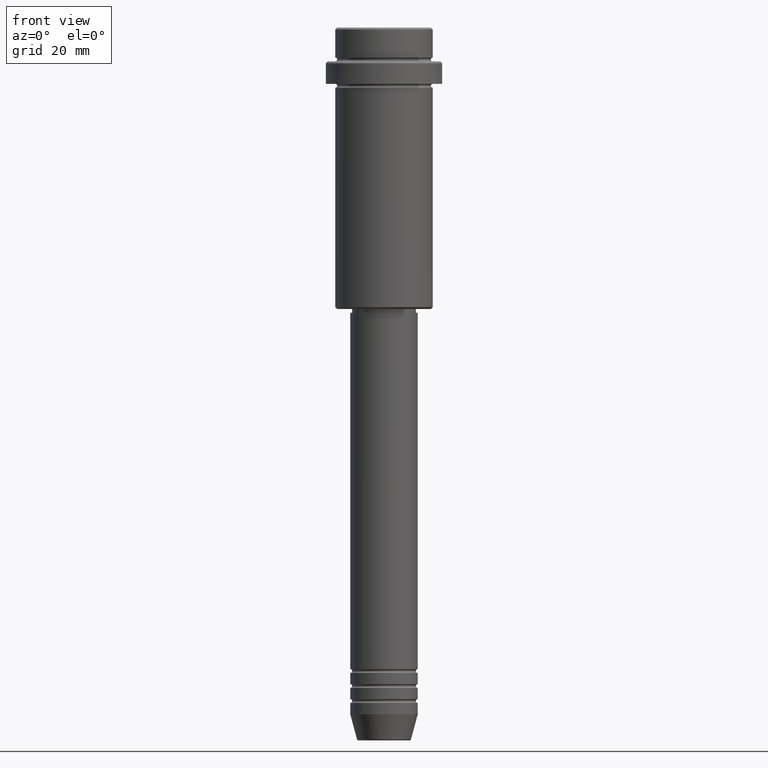
[diagram: clean part render]
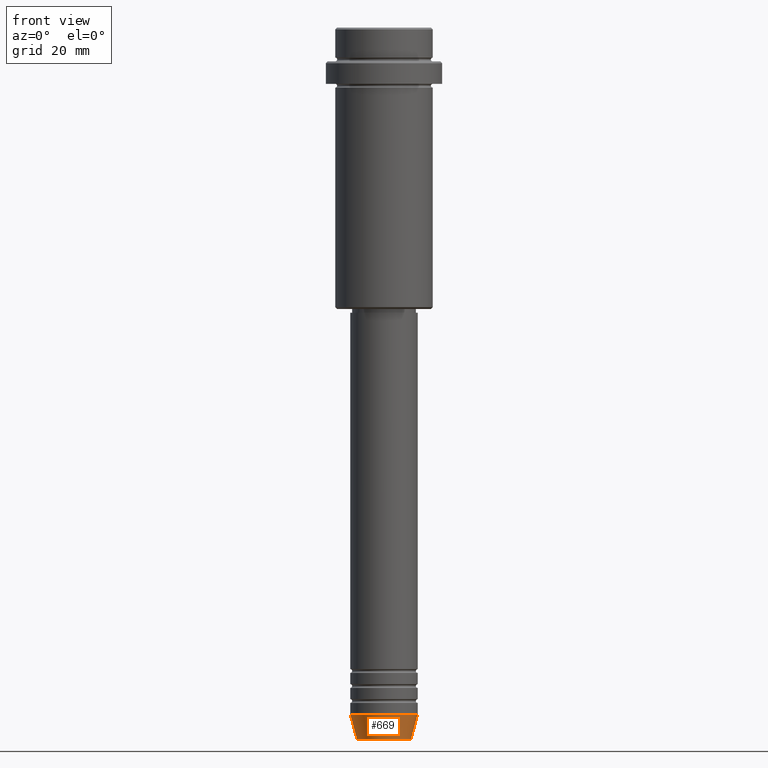
[diagram: same view with one face highlighted and labeled with its STEP entity id]
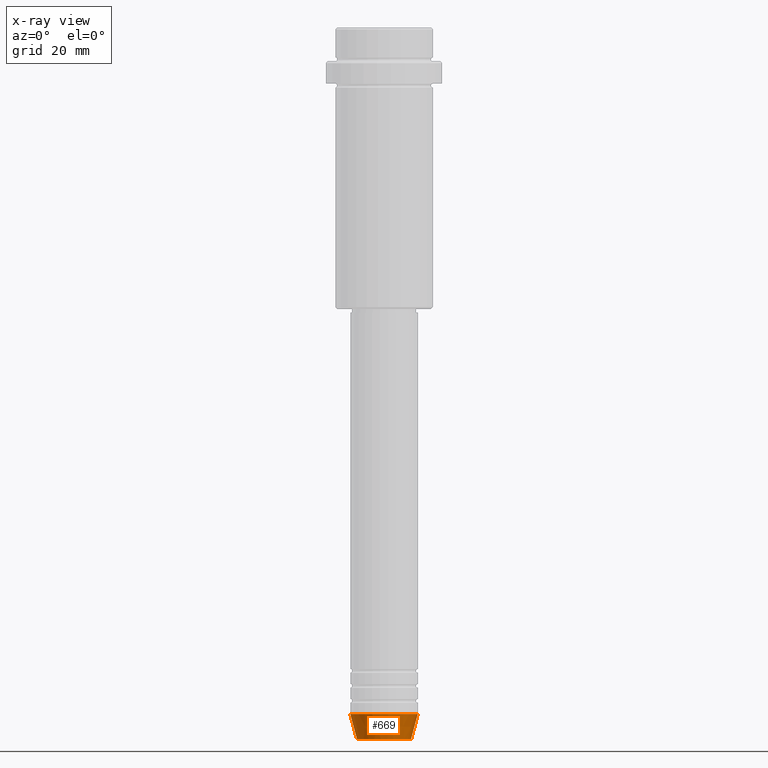
[diagram: x-ray of the same camera — body ghosted, the highlighted face saturated]
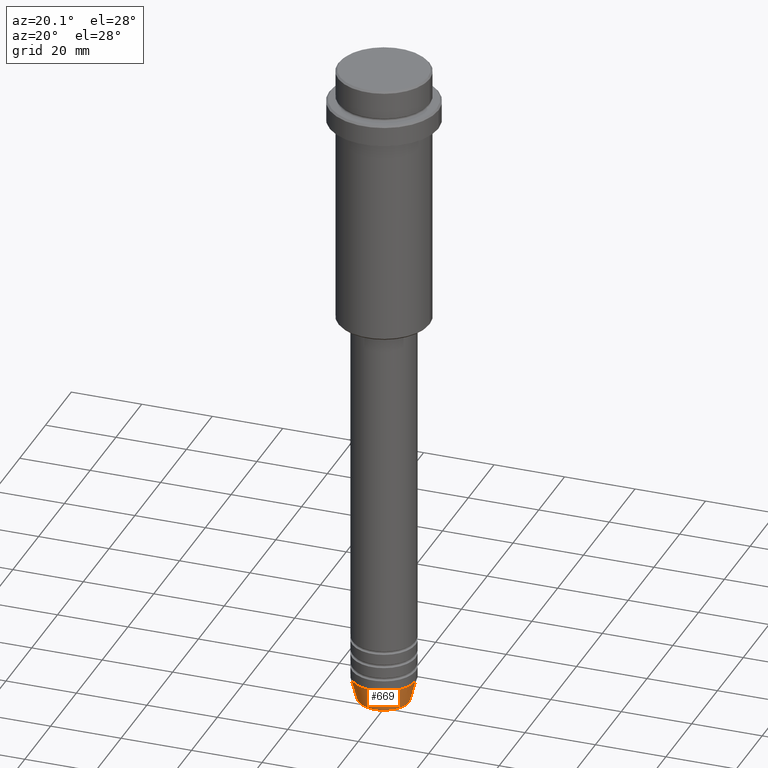
[diagram: same view with one face highlighted and labeled with its STEP entity id]
A machine part, front view. The second image highlights one B-rep face of the part: STEP entity #669.
The next image is the same camera in x-ray: the body ghosted, the highlighted face saturated — about 0% of this face is hidden behind the body in this view.
A second angle (auxiliary view) of the same face is appended — the face is thin or edge-on in the first view.
In plain terms, the highlighted conical surface has half-angle 15 deg.
Its self-contained STEP definition (entity closure, byte-faithful):
#275 = FACE_OUTER_BOUND ( 'NONE', #437, .T. ) ;
#317 = DIRECTION ( 'NONE',  ( 1.000000000000000000, 0.000000000000000000, 0.000000000000000000 ) ) ;
#341 = DIRECTION ( 'NONE',  ( -0.000000000000000000, -0.000000000000000000, 1.000000000000000000 ) ) ;
#348 = CIRCLE ( 'NONE', #524, 7.223655072137188604 ) ;
#352 = LINE ( 'NONE', #1226, #965 ) ;
#433 = DIRECTION ( 'NONE',  ( -0.000000000000000000, -0.000000000000000000, 1.000000000000000000 ) ) ;
#437 = EDGE_LOOP ( 'NONE', ( #1312, #622, #513, #1241 ) ) ;
#513 = ORIENTED_EDGE ( 'NONE', *, *, #854, .T. ) ;
#524 = AXIS2_PLACEMENT_3D ( 'NONE', #1306, #341, #317 ) ;
#587 = DIRECTION ( 'NONE',  ( 0.2588190451025213501, 0.000000000000000000, 0.9659258262890680902 ) ) ;
#594 = AXIS2_PLACEMENT_3D ( 'NONE', #860, #433, #1327 ) ;
#622 = ORIENTED_EDGE ( 'NONE', *, *, #1402, .T. ) ;
#669 = ADVANCED_FACE ( 'NONE', ( #275 ), #680, .T. ) ;
#680 = CONICAL_SURFACE ( 'NONE', #1168, 9.000000000000000000, 0.2617993877991500740 ) ;
#707 = CARTESIAN_POINT ( 'NONE',  ( 0.000000000000000000, 0.000000000000000000, -183.0000000000000000 ) ) ;
#830 = VERTEX_POINT ( 'NONE', #1132 ) ;
#854 = EDGE_CURVE ( 'NONE', #1145, #830, #352, .T. ) ;
#857 = CARTESIAN_POINT ( 'NONE',  ( -9.000000000000000000, 1.102182119232617714E-15, -183.0000000000000000 ) ) ;
#860 = CARTESIAN_POINT ( 'NONE',  ( 0.000000000000000000, 0.000000000000000000, -183.0000000000000000 ) ) ;
#874 = DIRECTION ( 'NONE',  ( -0.2588190451025213501, 3.169619151431772337E-17, 0.9659258262890680902 ) ) ;
#878 = DIRECTION ( 'NONE',  ( 1.000000000000000000, 0.000000000000000000, 0.000000000000000000 ) ) ;
#965 = VECTOR ( 'NONE', #587, 1000.000000000000000 ) ;
#989 = CARTESIAN_POINT ( 'NONE',  ( 7.223655072137188604, 0.000000000000000000, -189.6294095225512706 ) ) ;
#1087 = LINE ( 'NONE', #857, #1170 ) ;
#1132 = CARTESIAN_POINT ( 'NONE',  ( 9.000000000000000000, 0.000000000000000000, -183.0000000000000000 ) ) ;
#1145 = VERTEX_POINT ( 'NONE', #989 ) ;
#1154 = EDGE_CURVE ( 'NONE', #1379, #1195, #1087, .T. ) ;
#1155 = DIRECTION ( 'NONE',  ( -0.000000000000000000, -0.000000000000000000, 1.000000000000000000 ) ) ;
#1168 = AXIS2_PLACEMENT_3D ( 'NONE', #707, #1155, #878 ) ;
#1170 = VECTOR ( 'NONE', #874, 1000.000000000000000 ) ;
#1195 = VERTEX_POINT ( 'NONE', #1405 ) ;
#1226 = CARTESIAN_POINT ( 'NONE',  ( 9.000000000000000000, 0.000000000000000000, -183.0000000000000000 ) ) ;
#1241 = ORIENTED_EDGE ( 'NONE', *, *, #1394, .F. ) ;
#1285 = CIRCLE ( 'NONE', #594, 9.000000000000000000 ) ;
#1306 = CARTESIAN_POINT ( 'NONE',  ( 0.000000000000000000, 0.000000000000000000, -189.6294095225512706 ) ) ;
#1312 = ORIENTED_EDGE ( 'NONE', *, *, #1154, .F. ) ;
#1316 = CARTESIAN_POINT ( 'NONE',  ( -7.223655072137189492, 9.934123627281765110E-16, -189.6294095225512706 ) ) ;
#1327 = DIRECTION ( 'NONE',  ( 1.000000000000000000, 0.000000000000000000, 0.000000000000000000 ) ) ;
#1379 = VERTEX_POINT ( 'NONE', #1316 ) ;
#1394 = EDGE_CURVE ( 'NONE', #1195, #830, #1285, .T. ) ;
#1402 = EDGE_CURVE ( 'NONE', #1379, #1145, #348, .T. ) ;
#1405 = CARTESIAN_POINT ( 'NONE',  ( -9.000000000000000000, 1.102182119232617714E-15, -183.0000000000000000 ) ) ;